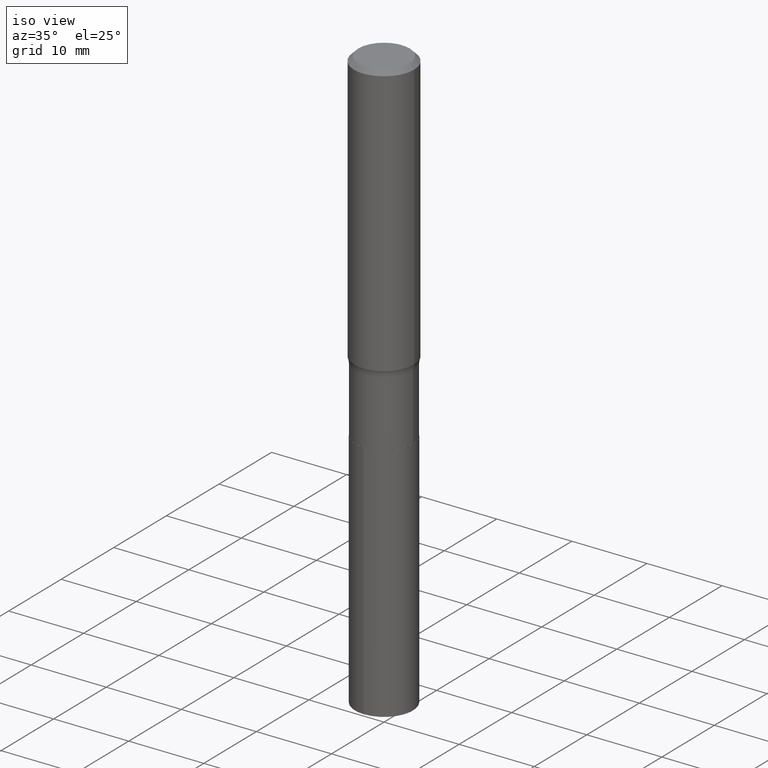
[diagram: clean part render]
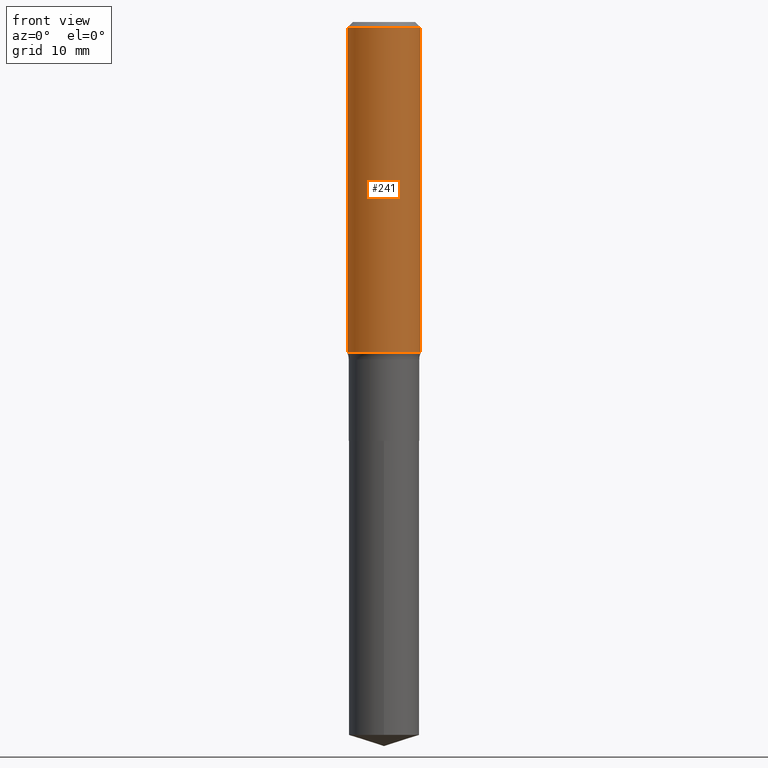
[diagram: tour spotlight — one face highlighted and labeled with its STEP entity id]
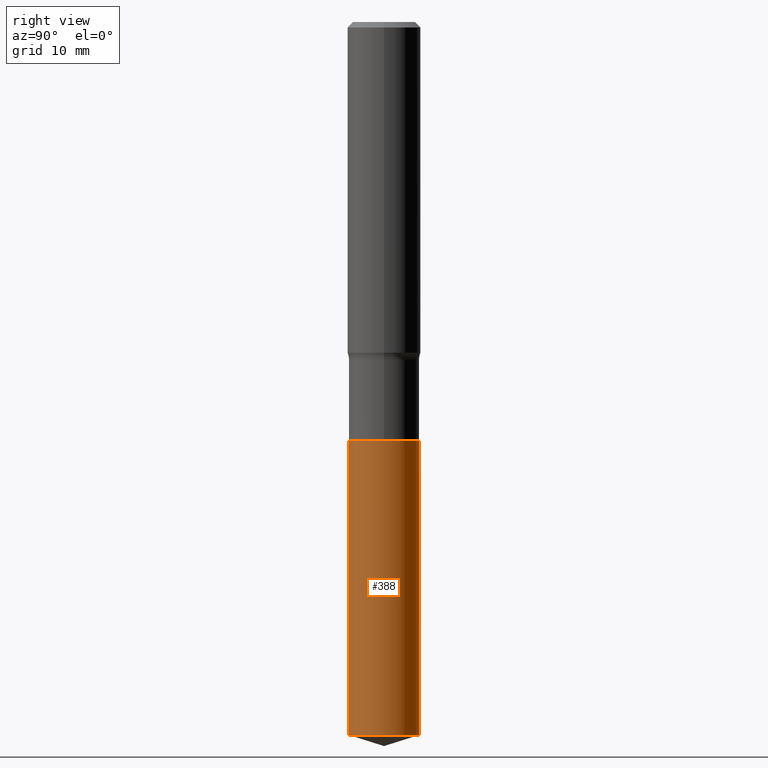
[diagram: tour spotlight — one face highlighted and labeled with its STEP entity id]
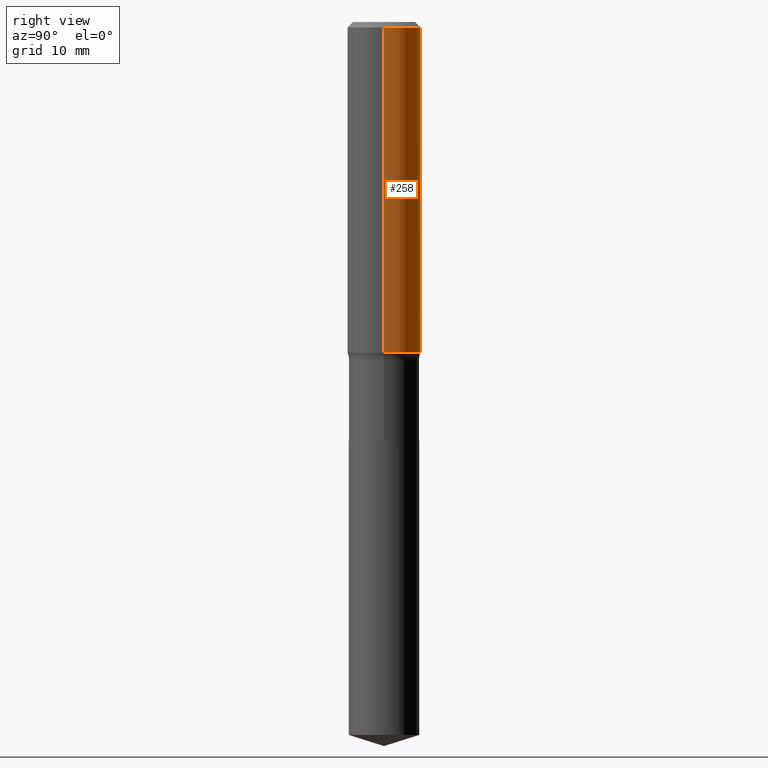
[diagram: tour spotlight — one face highlighted and labeled with its STEP entity id]
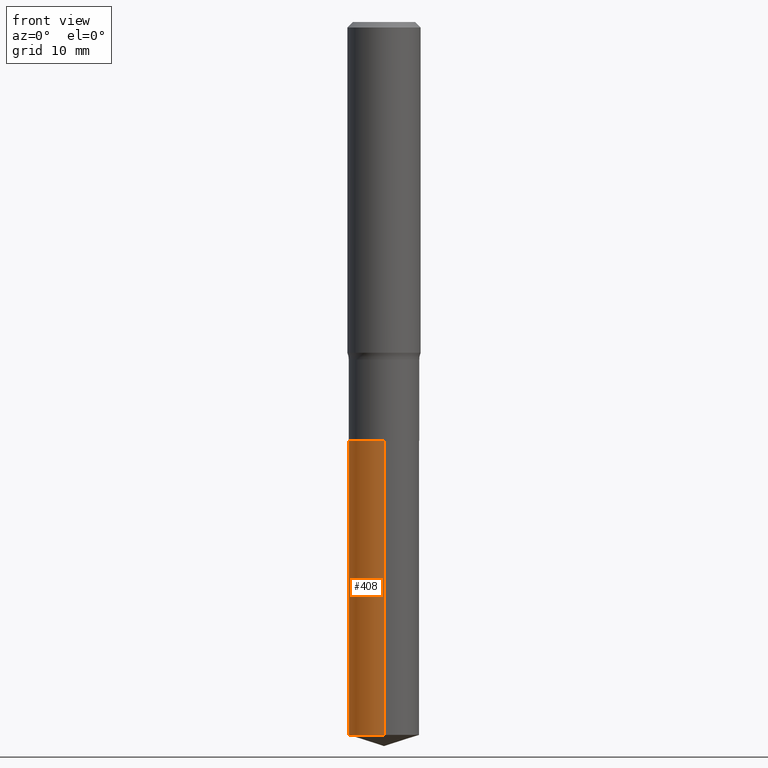
[diagram: tour spotlight — one face highlighted and labeled with its STEP entity id]
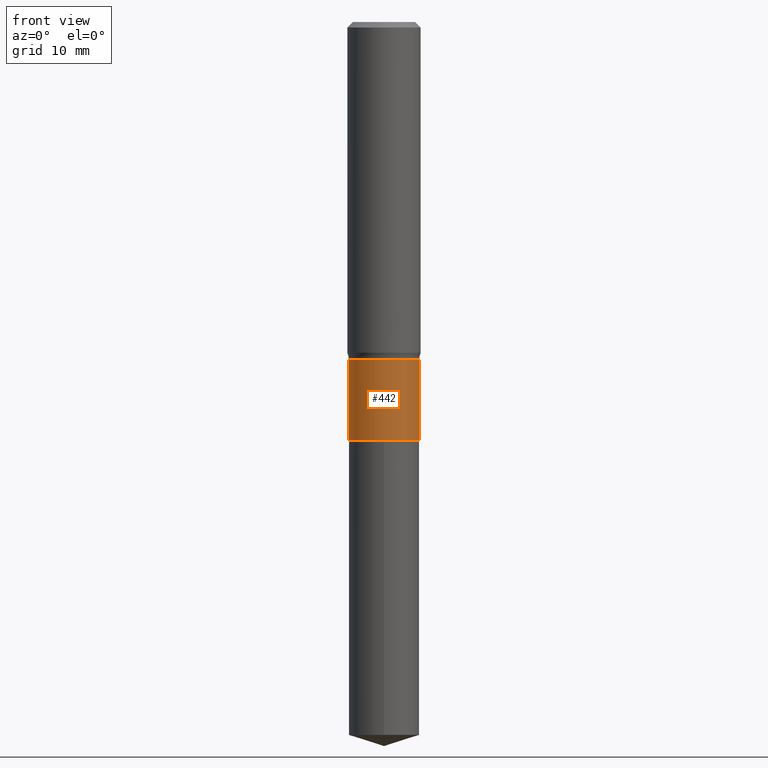
[diagram: tour spotlight — one face highlighted and labeled with its STEP entity id]
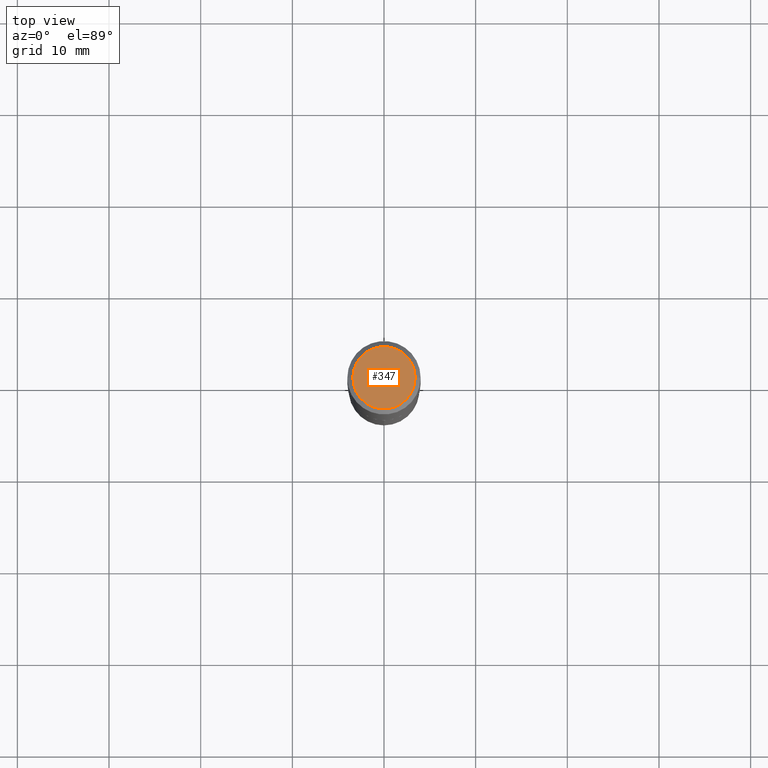
[diagram: tour spotlight — one face highlighted and labeled with its STEP entity id]
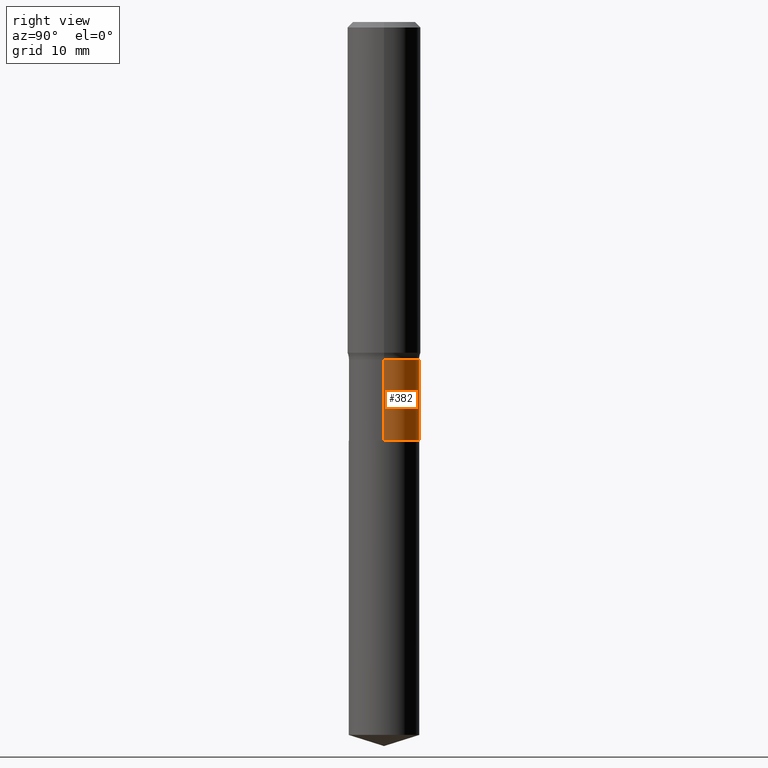
[diagram: tour spotlight — one face highlighted and labeled with its STEP entity id]
A machine part: a face-by-face anatomy tour. The part has 17 B-rep faces; the first image is the clean iso view, then the 7 largest visible faces are spotlighted one at a time (largest first), each with its STEP entity span.

Face 1 — front view, entity #241. In plain terms, the highlighted cylindrical surface (partial cylindrical patch) has radius 4.0005 mm, axis along (-0, 0, 1).
Definition (entity closure, byte-faithful):
#18 = FACE_OUTER_BOUND ( 'NONE', #135, .T. ) ;
#25 = DIRECTION ( 'NONE',  ( 1.000000000000000000, -6.982962677686265922E-15, 0.000000000000000000 ) ) ;
#43 = ORIENTED_EDGE ( 'NONE', *, *, #170, .F. ) ;
#50 = EDGE_CURVE ( 'NONE', #286, #58, #90, .T. ) ;
#53 = VECTOR ( 'NONE', #459, 39.37007874015748143 ) ;
#57 = CARTESIAN_POINT ( 'NONE',  ( 5.777420054612421104E-31, -8.248624663016984002E-17, -0.02362500000000014588 ) ) ;
#58 = VERTEX_POINT ( 'NONE', #232 ) ;
#60 = DIRECTION ( 'NONE',  ( -2.445468806185136597E-29, 3.491481338843145583E-15, 1.000000000000000000 ) ) ;
#62 = CARTESIAN_POINT ( 'NONE',  ( 3.474082587019340908E-29, -4.960069206975464196E-15, -1.420620282799195833 ) ) ;
#75 = EDGE_CURVE ( 'NONE', #386, #134, #198, .T. ) ;
#90 = LINE ( 'NONE', #236, #384 ) ;
#133 = CYLINDRICAL_SURFACE ( 'NONE', #460, 0.1575000000000000844 ) ;
#134 = VERTEX_POINT ( 'NONE', #390 ) ;
#135 = EDGE_LOOP ( 'NONE', ( #365, #334, #177, #43 ) ) ;
#165 = DIRECTION ( 'NONE',  ( -2.445468806185136597E-29, 3.491481338843145583E-15, 1.000000000000000000 ) ) ;
#170 = EDGE_CURVE ( 'NONE', #134, #58, #301, .T. ) ;
#171 = DIRECTION ( 'NONE',  ( 1.000000000000000000, -6.982962677686265922E-15, 0.000000000000000000 ) ) ;
#177 = ORIENTED_EDGE ( 'NONE', *, *, #50, .T. ) ;
#193 = CARTESIAN_POINT ( 'NONE',  ( -0.1575000000000000844, 1.119104808822158392E-15, -7.747322767151481189E-30 ) ) ;
#198 = LINE ( 'NONE', #193, #53 ) ;
#200 = AXIS2_PLACEMENT_3D ( 'NONE', #62, #60, #171 ) ;
#204 = DIRECTION ( 'NONE',  ( -2.445468806185136597E-29, 3.491481338843145583E-15, 1.000000000000000000 ) ) ;
#225 = EDGE_CURVE ( 'NONE', #386, #286, #443, .T. ) ;
#232 = CARTESIAN_POINT ( 'NONE',  ( 0.1575000000000000011, -1.182302868365756679E-15, -0.02362500000000014588 ) ) ;
#236 = CARTESIAN_POINT ( 'NONE',  ( 0.1575000000000000844, -1.099816621735587677E-15, 7.679978421878603638E-30 ) ) ;
#241 = ADVANCED_FACE ( 'NONE', ( #18 ), #133, .T. ) ;
#279 = DIRECTION ( 'NONE',  ( 1.000000000000000000, -6.982962677686267499E-15, 4.876176775795936353E-29 ) ) ;
#286 = VERTEX_POINT ( 'NONE', #401 ) ;
#301 = CIRCLE ( 'NONE', #479, 0.1575000000000000011 ) ;
#334 = ORIENTED_EDGE ( 'NONE', *, *, #225, .T. ) ;
#365 = ORIENTED_EDGE ( 'NONE', *, *, #75, .F. ) ;
#384 = VECTOR ( 'NONE', #421, 39.37007874015748143 ) ;
#386 = VERTEX_POINT ( 'NONE', #410 ) ;
#390 = CARTESIAN_POINT ( 'NONE',  ( -0.1575000000000000011, -1.402172917980658404E-15, -0.02362500000000014588 ) ) ;
#401 = CARTESIAN_POINT ( 'NONE',  ( 0.1575000000000001954, -6.059885828711052465E-15, -1.420620282799195833 ) ) ;
#410 = CARTESIAN_POINT ( 'NONE',  ( -0.1575000000000001954, -3.840964398153305804E-15, -1.420620282799195833 ) ) ;
#421 = DIRECTION ( 'NONE',  ( -2.445468806185136877E-29, 3.491481338843145188E-15, 1.000000000000000000 ) ) ;
#443 = CIRCLE ( 'NONE', #200, 0.1575000000000001954 ) ;
#459 = DIRECTION ( 'NONE',  ( -2.445468806185136877E-29, 3.491481338843145188E-15, 1.000000000000000000 ) ) ;
#460 = AXIS2_PLACEMENT_3D ( 'NONE', #465, #204, #279 ) ;
#465 = CARTESIAN_POINT ( 'NONE',  ( 0.000000000000000000, 0.000000000000000000, 0.000000000000000000 ) ) ;
#479 = AXIS2_PLACEMENT_3D ( 'NONE', #57, #165, #25 ) ;

Face 2 — right view, entity #388. In plain terms, the highlighted cylindrical surface (edge-blend (fillet) strip) has radius 3.8494 mm, axis along (-0, 0, 1).
Definition (entity closure, byte-faithful):
#8 = CARTESIAN_POINT ( 'NONE',  ( 1.076827516044506507E-15, 0.1515499999999936898, -1.799100000000000588 ) ) ;
#16 = EDGE_CURVE ( 'NONE', #251, #132, #208, .T. ) ;
#28 = ORIENTED_EDGE ( 'NONE', *, *, #16, .F. ) ;
#74 = LINE ( 'NONE', #404, #128 ) ;
#99 = VERTEX_POINT ( 'NONE', #462 ) ;
#107 = DIRECTION ( 'NONE',  ( -6.982962677686265922E-15, -1.000000000000000000, 3.605210153301568306E-15 ) ) ;
#110 = CARTESIAN_POINT ( 'NONE',  ( -1.058267993803309547E-15, -0.1515500000000062630, -1.799099999999999477 ) ) ;
#128 = VECTOR ( 'NONE', #256, 39.37007874015748143 ) ;
#132 = VERTEX_POINT ( 'NONE', #8 ) ;
#141 = DIRECTION ( 'NONE',  ( -2.445422248956437479E-29, 3.491548011444515616E-15, 1.000000000000000000 ) ) ;
#142 = CARTESIAN_POINT ( 'NONE',  ( 7.488985128861653082E-29, -1.069245418028746689E-14, -3.062416468545390291 ) ) ;
#147 = VERTEX_POINT ( 'NONE', #288 ) ;
#155 = CARTESIAN_POINT ( 'NONE',  ( 4.399642929207679392E-29, -6.281524076712702632E-15, -1.799099999999999921 ) ) ;
#174 = CARTESIAN_POINT ( 'NONE',  ( -1.058267993803309547E-15, -0.1515500000000062630, -1.799099999999999477 ) ) ;
#181 = DIRECTION ( 'NONE',  ( -2.445422248956437479E-29, 3.491548011444515616E-15, 1.000000000000000000 ) ) ;
#183 = VECTOR ( 'NONE', #329, 39.37007874015748143 ) ;
#203 = ORIENTED_EDGE ( 'NONE', *, *, #437, .T. ) ;
#208 = CIRCLE ( 'NONE', #375, 0.1515499999999999903 ) ;
#214 = EDGE_LOOP ( 'NONE', ( #361, #203, #28, #221 ) ) ;
#218 = FACE_OUTER_BOUND ( 'NONE', #214, .T. ) ;
#221 = ORIENTED_EDGE ( 'NONE', *, *, #416, .F. ) ;
#251 = VERTEX_POINT ( 'NONE', #174 ) ;
#253 = LINE ( 'NONE', #110, #183 ) ;
#256 = DIRECTION ( 'NONE',  ( -2.445422248956437198E-29, 3.491548011444515221E-15, 1.000000000000000000 ) ) ;
#261 = DIRECTION ( 'NONE',  ( -6.982962677686265922E-15, -1.000000000000000000, 3.605210153301569095E-15 ) ) ;
#275 = DIRECTION ( 'NONE',  ( -2.445422248956437479E-29, 3.491548011444515616E-15, 1.000000000000000000 ) ) ;
#288 = CARTESIAN_POINT ( 'NONE',  ( -1.058267993803278387E-15, -0.1515500000000106484, -3.062416468545389403 ) ) ;
#296 = CIRCLE ( 'NONE', #454, 0.1515499999999999625 ) ;
#329 = DIRECTION ( 'NONE',  ( -2.445422248956437198E-29, 3.491548011444515221E-15, 1.000000000000000000 ) ) ;
#331 = CYLINDRICAL_SURFACE ( 'NONE', #394, 0.1515499999999999903 ) ;
#354 = EDGE_CURVE ( 'NONE', #147, #99, #296, .T. ) ;
#361 = ORIENTED_EDGE ( 'NONE', *, *, #354, .T. ) ;
#370 = CARTESIAN_POINT ( 'NONE',  ( 4.399642929207679392E-29, -6.281524076712702632E-15, -1.799099999999999921 ) ) ;
#375 = AXIS2_PLACEMENT_3D ( 'NONE', #155, #275, #455 ) ;
#388 = ADVANCED_FACE ( 'NONE', ( #218 ), #331, .T. ) ;
#394 = AXIS2_PLACEMENT_3D ( 'NONE', #370, #141, #107 ) ;
#404 = CARTESIAN_POINT ( 'NONE',  ( 1.076827516044475742E-15, 0.1515499999999936898, -1.799100000000000588 ) ) ;
#416 = EDGE_CURVE ( 'NONE', #147, #251, #253, .T. ) ;
#437 = EDGE_CURVE ( 'NONE', #99, #132, #74, .T. ) ;
#454 = AXIS2_PLACEMENT_3D ( 'NONE', #142, #181, #261 ) ;
#455 = DIRECTION ( 'NONE',  ( -6.982962677686265922E-15, -1.000000000000000000, 3.605210153301568306E-15 ) ) ;
#462 = CARTESIAN_POINT ( 'NONE',  ( 1.076827516044506310E-15, 0.1515499999999892489, -3.062416468545390735 ) ) ;

Face 3 — right view, entity #258. In plain terms, the highlighted cylindrical surface (partial cylindrical patch) has radius 4.0005 mm, axis along (-0, 0, 1).
Definition (entity closure, byte-faithful):
#20 = EDGE_CURVE ( 'NONE', #58, #134, #199, .T. ) ;
#50 = EDGE_CURVE ( 'NONE', #286, #58, #90, .T. ) ;
#53 = VECTOR ( 'NONE', #459, 39.37007874015748143 ) ;
#58 = VERTEX_POINT ( 'NONE', #232 ) ;
#75 = EDGE_CURVE ( 'NONE', #386, #134, #198, .T. ) ;
#86 = DIRECTION ( 'NONE',  ( 1.000000000000000000, -6.982962677686265922E-15, 0.000000000000000000 ) ) ;
#89 = EDGE_CURVE ( 'NONE', #286, #386, #118, .T. ) ;
#90 = LINE ( 'NONE', #236, #384 ) ;
#115 = DIRECTION ( 'NONE',  ( -2.445468806185136597E-29, 3.491481338843145583E-15, 1.000000000000000000 ) ) ;
#118 = CIRCLE ( 'NONE', #368, 0.1575000000000001954 ) ;
#121 = CARTESIAN_POINT ( 'NONE',  ( 5.777420054612421104E-31, -8.248624663016984002E-17, -0.02362500000000014588 ) ) ;
#125 = CYLINDRICAL_SURFACE ( 'NONE', #308, 0.1575000000000000844 ) ;
#126 = EDGE_LOOP ( 'NONE', ( #473, #414, #129, #320 ) ) ;
#129 = ORIENTED_EDGE ( 'NONE', *, *, #20, .F. ) ;
#134 = VERTEX_POINT ( 'NONE', #390 ) ;
#182 = AXIS2_PLACEMENT_3D ( 'NONE', #121, #115, #381 ) ;
#193 = CARTESIAN_POINT ( 'NONE',  ( -0.1575000000000000844, 1.119104808822158392E-15, -7.747322767151481189E-30 ) ) ;
#198 = LINE ( 'NONE', #193, #53 ) ;
#199 = CIRCLE ( 'NONE', #182, 0.1575000000000000011 ) ;
#202 = CARTESIAN_POINT ( 'NONE',  ( 3.474082587019340908E-29, -4.960069206975464196E-15, -1.420620282799195833 ) ) ;
#209 = FACE_OUTER_BOUND ( 'NONE', #126, .T. ) ;
#232 = CARTESIAN_POINT ( 'NONE',  ( 0.1575000000000000011, -1.182302868365756679E-15, -0.02362500000000014588 ) ) ;
#236 = CARTESIAN_POINT ( 'NONE',  ( 0.1575000000000000844, -1.099816621735587677E-15, 7.679978421878603638E-30 ) ) ;
#245 = DIRECTION ( 'NONE',  ( -2.445468806185136597E-29, 3.491481338843145583E-15, 1.000000000000000000 ) ) ;
#258 = ADVANCED_FACE ( 'NONE', ( #209 ), #125, .T. ) ;
#282 = CARTESIAN_POINT ( 'NONE',  ( 0.000000000000000000, 0.000000000000000000, 0.000000000000000000 ) ) ;
#286 = VERTEX_POINT ( 'NONE', #401 ) ;
#308 = AXIS2_PLACEMENT_3D ( 'NONE', #282, #245, #360 ) ;
#310 = DIRECTION ( 'NONE',  ( -2.445468806185136597E-29, 3.491481338843145583E-15, 1.000000000000000000 ) ) ;
#320 = ORIENTED_EDGE ( 'NONE', *, *, #50, .F. ) ;
#360 = DIRECTION ( 'NONE',  ( 1.000000000000000000, -6.982962677686267499E-15, 4.876176775795936353E-29 ) ) ;
#368 = AXIS2_PLACEMENT_3D ( 'NONE', #202, #310, #86 ) ;
#381 = DIRECTION ( 'NONE',  ( 1.000000000000000000, -6.982962677686265922E-15, 0.000000000000000000 ) ) ;
#384 = VECTOR ( 'NONE', #421, 39.37007874015748143 ) ;
#386 = VERTEX_POINT ( 'NONE', #410 ) ;
#390 = CARTESIAN_POINT ( 'NONE',  ( -0.1575000000000000011, -1.402172917980658404E-15, -0.02362500000000014588 ) ) ;
#401 = CARTESIAN_POINT ( 'NONE',  ( 0.1575000000000001954, -6.059885828711052465E-15, -1.420620282799195833 ) ) ;
#410 = CARTESIAN_POINT ( 'NONE',  ( -0.1575000000000001954, -3.840964398153305804E-15, -1.420620282799195833 ) ) ;
#414 = ORIENTED_EDGE ( 'NONE', *, *, #75, .T. ) ;
#421 = DIRECTION ( 'NONE',  ( -2.445468806185136877E-29, 3.491481338843145188E-15, 1.000000000000000000 ) ) ;
#459 = DIRECTION ( 'NONE',  ( -2.445468806185136877E-29, 3.491481338843145188E-15, 1.000000000000000000 ) ) ;
#473 = ORIENTED_EDGE ( 'NONE', *, *, #89, .T. ) ;

Face 4 — front view, entity #408. In plain terms, the highlighted cylindrical surface (edge-blend (fillet) strip) has radius 3.8494 mm, axis along (-0, 0, 1).
Definition (entity closure, byte-faithful):
#8 = CARTESIAN_POINT ( 'NONE',  ( 1.076827516044506507E-15, 0.1515499999999936898, -1.799100000000000588 ) ) ;
#74 = LINE ( 'NONE', #404, #128 ) ;
#95 = ORIENTED_EDGE ( 'NONE', *, *, #416, .T. ) ;
#98 = EDGE_LOOP ( 'NONE', ( #477, #167, #95, #185 ) ) ;
#99 = VERTEX_POINT ( 'NONE', #462 ) ;
#100 = AXIS2_PLACEMENT_3D ( 'NONE', #445, #379, #184 ) ;
#110 = CARTESIAN_POINT ( 'NONE',  ( -1.058267993803309547E-15, -0.1515500000000062630, -1.799099999999999477 ) ) ;
#128 = VECTOR ( 'NONE', #256, 39.37007874015748143 ) ;
#132 = VERTEX_POINT ( 'NONE', #8 ) ;
#137 = CIRCLE ( 'NONE', #100, 0.1515499999999999903 ) ;
#147 = VERTEX_POINT ( 'NONE', #288 ) ;
#148 = CYLINDRICAL_SURFACE ( 'NONE', #152, 0.1515499999999999903 ) ;
#152 = AXIS2_PLACEMENT_3D ( 'NONE', #412, #254, #293 ) ;
#167 = ORIENTED_EDGE ( 'NONE', *, *, #259, .T. ) ;
#174 = CARTESIAN_POINT ( 'NONE',  ( -1.058267993803309547E-15, -0.1515500000000062630, -1.799099999999999477 ) ) ;
#183 = VECTOR ( 'NONE', #329, 39.37007874015748143 ) ;
#184 = DIRECTION ( 'NONE',  ( -6.982962677686265922E-15, -1.000000000000000000, 3.605210153301568306E-15 ) ) ;
#185 = ORIENTED_EDGE ( 'NONE', *, *, #342, .F. ) ;
#251 = VERTEX_POINT ( 'NONE', #174 ) ;
#253 = LINE ( 'NONE', #110, #183 ) ;
#254 = DIRECTION ( 'NONE',  ( -2.445422248956437479E-29, 3.491548011444515616E-15, 1.000000000000000000 ) ) ;
#256 = DIRECTION ( 'NONE',  ( -2.445422248956437198E-29, 3.491548011444515221E-15, 1.000000000000000000 ) ) ;
#259 = EDGE_CURVE ( 'NONE', #99, #147, #324, .T. ) ;
#288 = CARTESIAN_POINT ( 'NONE',  ( -1.058267993803278387E-15, -0.1515500000000106484, -3.062416468545389403 ) ) ;
#293 = DIRECTION ( 'NONE',  ( -6.982962677686265922E-15, -1.000000000000000000, 3.605210153301568306E-15 ) ) ;
#319 = DIRECTION ( 'NONE',  ( -6.982962677686265922E-15, -1.000000000000000000, 3.605210153301569095E-15 ) ) ;
#324 = CIRCLE ( 'NONE', #413, 0.1515499999999999625 ) ;
#329 = DIRECTION ( 'NONE',  ( -2.445422248956437198E-29, 3.491548011444515221E-15, 1.000000000000000000 ) ) ;
#342 = EDGE_CURVE ( 'NONE', #132, #251, #137, .T. ) ;
#379 = DIRECTION ( 'NONE',  ( -2.445422248956437479E-29, 3.491548011444515616E-15, 1.000000000000000000 ) ) ;
#402 = DIRECTION ( 'NONE',  ( -2.445422248956437479E-29, 3.491548011444515616E-15, 1.000000000000000000 ) ) ;
#404 = CARTESIAN_POINT ( 'NONE',  ( 1.076827516044475742E-15, 0.1515499999999936898, -1.799100000000000588 ) ) ;
#408 = ADVANCED_FACE ( 'NONE', ( #446 ), #148, .T. ) ;
#412 = CARTESIAN_POINT ( 'NONE',  ( 4.399642929207679392E-29, -6.281524076712702632E-15, -1.799099999999999921 ) ) ;
#413 = AXIS2_PLACEMENT_3D ( 'NONE', #438, #402, #319 ) ;
#416 = EDGE_CURVE ( 'NONE', #147, #251, #253, .T. ) ;
#437 = EDGE_CURVE ( 'NONE', #99, #132, #74, .T. ) ;
#438 = CARTESIAN_POINT ( 'NONE',  ( 7.488985128861653082E-29, -1.069245418028746689E-14, -3.062416468545390291 ) ) ;
#445 = CARTESIAN_POINT ( 'NONE',  ( 4.399642929207679392E-29, -6.281524076712702632E-15, -1.799099999999999921 ) ) ;
#446 = FACE_OUTER_BOUND ( 'NONE', #98, .T. ) ;
#462 = CARTESIAN_POINT ( 'NONE',  ( 1.076827516044506310E-15, 0.1515499999999892489, -3.062416468545390735 ) ) ;
#477 = ORIENTED_EDGE ( 'NONE', *, *, #437, .F. ) ;

Face 5 — front view, entity #442. In plain terms, the highlighted cylindrical surface (edge-blend (fillet) strip) has radius 3.8494 mm, axis along (-0, 0, 1).
Definition (entity closure, byte-faithful):
#3 = AXIS2_PLACEMENT_3D ( 'NONE', #71, #371, #33 ) ;
#14 = VERTEX_POINT ( 'NONE', #303 ) ;
#22 = AXIS2_PLACEMENT_3D ( 'NONE', #220, #488, #327 ) ;
#27 = VERTEX_POINT ( 'NONE', #392 ) ;
#29 = ORIENTED_EDGE ( 'NONE', *, *, #314, .F. ) ;
#33 = DIRECTION ( 'NONE',  ( 1.000000000000000000, -6.982962677686267499E-15, 4.876176775795936353E-29 ) ) ;
#64 = ORIENTED_EDGE ( 'NONE', *, *, #255, .T. ) ;
#67 = LINE ( 'NONE', #448, #406 ) ;
#69 = AXIS2_PLACEMENT_3D ( 'NONE', #145, #295, #298 ) ;
#71 = CARTESIAN_POINT ( 'NONE',  ( 0.000000000000000000, 0.000000000000000000, 0.000000000000000000 ) ) ;
#77 = CIRCLE ( 'NONE', #22, 0.1515499999999999903 ) ;
#80 = VERTEX_POINT ( 'NONE', #113 ) ;
#108 = EDGE_LOOP ( 'NONE', ( #29, #440, #64, #212 ) ) ;
#113 = CARTESIAN_POINT ( 'NONE',  ( 0.1515499999999999625, -6.122661675795335552E-15, -1.450499999999999901 ) ) ;
#131 = CARTESIAN_POINT ( 'NONE',  ( 0.1515499999999999625, -1.058267993803353526E-15, 7.389845903718739567E-30 ) ) ;
#145 = CARTESIAN_POINT ( 'NONE',  ( 3.547152503371540530E-29, -5.064393681991982224E-15, -1.450499999999999901 ) ) ;
#146 = CYLINDRICAL_SURFACE ( 'NONE', #3, 0.1515499999999999625 ) ;
#166 = LINE ( 'NONE', #131, #400 ) ;
#180 = CARTESIAN_POINT ( 'NONE',  ( 0.1515499999999999903, -7.338046329846634457E-15, -1.798599999999999977 ) ) ;
#212 = ORIENTED_EDGE ( 'NONE', *, *, #466, .F. ) ;
#217 = CIRCLE ( 'NONE', #69, 0.1515499999999999625 ) ;
#220 = CARTESIAN_POINT ( 'NONE',  ( 4.398420194804586591E-29, -6.279778336043281129E-15, -1.798599999999999977 ) ) ;
#227 = DIRECTION ( 'NONE',  ( -2.445468806185136877E-29, 3.491481338843145188E-15, 1.000000000000000000 ) ) ;
#255 = EDGE_CURVE ( 'NONE', #328, #80, #166, .T. ) ;
#295 = DIRECTION ( 'NONE',  ( -2.445468806185136597E-29, 3.491481338843145583E-15, 1.000000000000000000 ) ) ;
#298 = DIRECTION ( 'NONE',  ( 1.000000000000000000, -6.982962677686263555E-15, 0.000000000000000000 ) ) ;
#303 = CARTESIAN_POINT ( 'NONE',  ( -0.1515499999999999903, -4.595258492973200111E-15, -1.798599999999999977 ) ) ;
#314 = EDGE_CURVE ( 'NONE', #14, #27, #67, .T. ) ;
#327 = DIRECTION ( 'NONE',  ( 1.000000000000000000, -6.982962677686268288E-15, 0.000000000000000000 ) ) ;
#328 = VERTEX_POINT ( 'NONE', #180 ) ;
#348 = EDGE_CURVE ( 'NONE', #14, #328, #77, .T. ) ;
#371 = DIRECTION ( 'NONE',  ( -2.445468806185136597E-29, 3.491481338843145583E-15, 1.000000000000000000 ) ) ;
#392 = CARTESIAN_POINT ( 'NONE',  ( -0.1515499999999999625, -4.595258492973200111E-15, -1.450499999999999901 ) ) ;
#398 = DIRECTION ( 'NONE',  ( -2.445468806185136877E-29, 3.491481338843145188E-15, 1.000000000000000000 ) ) ;
#400 = VECTOR ( 'NONE', #398, 39.37007874015748143 ) ;
#406 = VECTOR ( 'NONE', #227, 39.37007874015748143 ) ;
#440 = ORIENTED_EDGE ( 'NONE', *, *, #348, .T. ) ;
#442 = ADVANCED_FACE ( 'NONE', ( #449 ), #146, .T. ) ;
#448 = CARTESIAN_POINT ( 'NONE',  ( -0.1515499999999999625, 1.076827516044431565E-15, -7.454646129281308311E-30 ) ) ;
#449 = FACE_OUTER_BOUND ( 'NONE', #108, .T. ) ;
#466 = EDGE_CURVE ( 'NONE', #27, #80, #217, .T. ) ;
#488 = DIRECTION ( 'NONE',  ( -2.445468806185136597E-29, 3.491481338843145583E-15, 1.000000000000000000 ) ) ;

Face 6 — top view, entity #347. In plain terms, the highlighted planar face has unit normal (0, -0, -1).
Definition (entity closure, byte-faithful):
#11 = AXIS2_PLACEMENT_3D ( 'NONE', #79, #376, #325 ) ;
#26 = DIRECTION ( 'NONE',  ( -2.445468806185136597E-29, 3.491481338843145583E-15, 1.000000000000000000 ) ) ;
#56 = VERTEX_POINT ( 'NONE', #117 ) ;
#79 = CARTESIAN_POINT ( 'NONE',  ( -5.014852121625167883E-47, 7.159879756154482429E-33, 2.050671065172242981E-18 ) ) ;
#91 = CARTESIAN_POINT ( 'NONE',  ( 0.1338749999999999940, -1.040731925365424925E-15, 4.101342130351393887E-18 ) ) ;
#104 = FACE_OUTER_BOUND ( 'NONE', #363, .T. ) ;
#117 = CARTESIAN_POINT ( 'NONE',  ( -0.1338749999999999940, 9.760872517903331886E-16, 4.101342130337804525E-18 ) ) ;
#122 = EDGE_CURVE ( 'NONE', #56, #153, #452, .T. ) ;
#127 = DIRECTION ( 'NONE',  ( 1.000000000000000000, -6.982962677686266711E-15, 4.876170806578254279E-29 ) ) ;
#143 = EDGE_CURVE ( 'NONE', #153, #56, #431, .T. ) ;
#150 = ORIENTED_EDGE ( 'NONE', *, *, #143, .T. ) ;
#153 = VERTEX_POINT ( 'NONE', #91 ) ;
#190 = AXIS2_PLACEMENT_3D ( 'NONE', #418, #196, #346 ) ;
#196 = DIRECTION ( 'NONE',  ( -2.445468806185136597E-29, 3.491481338843145583E-15, 1.000000000000000000 ) ) ;
#215 = PLANE ( 'NONE',  #11 ) ;
#325 = DIRECTION ( 'NONE',  ( -1.000000000000000000, 6.982962677686265922E-15, -4.876176775795935793E-29 ) ) ;
#346 = DIRECTION ( 'NONE',  ( 1.000000000000000000, -6.982962677686266711E-15, 4.876170806578254279E-29 ) ) ;
#347 = ADVANCED_FACE ( 'NONE', ( #104 ), #215, .F. ) ;
#353 = ORIENTED_EDGE ( 'NONE', *, *, #122, .T. ) ;
#363 = EDGE_LOOP ( 'NONE', ( #353, #150 ) ) ;
#376 = DIRECTION ( 'NONE',  ( 2.438088387897960049E-29, -3.491481338843145188E-15, -1.000000000000000000 ) ) ;
#418 = CARTESIAN_POINT ( 'NONE',  ( -1.002970424325033577E-46, 1.431975951230896486E-32, 4.101342130344485961E-18 ) ) ;
#431 = CIRCLE ( 'NONE', #469, 0.1338749999999999940 ) ;
#434 = CARTESIAN_POINT ( 'NONE',  ( -1.002970424325033577E-46, 1.431975951230896486E-32, 4.101342130344485961E-18 ) ) ;
#452 = CIRCLE ( 'NONE', #190, 0.1338749999999999940 ) ;
#469 = AXIS2_PLACEMENT_3D ( 'NONE', #434, #26, #127 ) ;

Face 7 — right view, entity #382. In plain terms, the highlighted cylindrical surface (edge-blend (fillet) strip) has radius 3.8494 mm, axis along (-0, 0, 1).
Definition (entity closure, byte-faithful):
#4 = ORIENTED_EDGE ( 'NONE', *, *, #314, .T. ) ;
#14 = VERTEX_POINT ( 'NONE', #303 ) ;
#27 = VERTEX_POINT ( 'NONE', #392 ) ;
#31 = CARTESIAN_POINT ( 'NONE',  ( 4.398420194804586591E-29, -6.279778336043281129E-15, -1.798599999999999977 ) ) ;
#41 = ORIENTED_EDGE ( 'NONE', *, *, #255, .F. ) ;
#46 = EDGE_LOOP ( 'NONE', ( #489, #4, #290, #41 ) ) ;
#67 = LINE ( 'NONE', #448, #406 ) ;
#80 = VERTEX_POINT ( 'NONE', #113 ) ;
#84 = EDGE_CURVE ( 'NONE', #80, #27, #393, .T. ) ;
#111 = AXIS2_PLACEMENT_3D ( 'NONE', #450, #491, #483 ) ;
#113 = CARTESIAN_POINT ( 'NONE',  ( 0.1515499999999999625, -6.122661675795335552E-15, -1.450499999999999901 ) ) ;
#131 = CARTESIAN_POINT ( 'NONE',  ( 0.1515499999999999625, -1.058267993803353526E-15, 7.389845903718739567E-30 ) ) ;
#166 = LINE ( 'NONE', #131, #400 ) ;
#176 = AXIS2_PLACEMENT_3D ( 'NONE', #31, #407, #485 ) ;
#180 = CARTESIAN_POINT ( 'NONE',  ( 0.1515499999999999903, -7.338046329846634457E-15, -1.798599999999999977 ) ) ;
#227 = DIRECTION ( 'NONE',  ( -2.445468806185136877E-29, 3.491481338843145188E-15, 1.000000000000000000 ) ) ;
#237 = CARTESIAN_POINT ( 'NONE',  ( 3.547152503371540530E-29, -5.064393681991982224E-15, -1.450499999999999901 ) ) ;
#255 = EDGE_CURVE ( 'NONE', #328, #80, #166, .T. ) ;
#272 = DIRECTION ( 'NONE',  ( -2.445468806185136597E-29, 3.491481338843145583E-15, 1.000000000000000000 ) ) ;
#290 = ORIENTED_EDGE ( 'NONE', *, *, #84, .F. ) ;
#299 = FACE_OUTER_BOUND ( 'NONE', #46, .T. ) ;
#303 = CARTESIAN_POINT ( 'NONE',  ( -0.1515499999999999903, -4.595258492973200111E-15, -1.798599999999999977 ) ) ;
#314 = EDGE_CURVE ( 'NONE', #14, #27, #67, .T. ) ;
#328 = VERTEX_POINT ( 'NONE', #180 ) ;
#382 = ADVANCED_FACE ( 'NONE', ( #299 ), #409, .T. ) ;
#392 = CARTESIAN_POINT ( 'NONE',  ( -0.1515499999999999625, -4.595258492973200111E-15, -1.450499999999999901 ) ) ;
#393 = CIRCLE ( 'NONE', #441, 0.1515499999999999625 ) ;
#398 = DIRECTION ( 'NONE',  ( -2.445468806185136877E-29, 3.491481338843145188E-15, 1.000000000000000000 ) ) ;
#400 = VECTOR ( 'NONE', #398, 39.37007874015748143 ) ;
#406 = VECTOR ( 'NONE', #227, 39.37007874015748143 ) ;
#407 = DIRECTION ( 'NONE',  ( -2.445468806185136597E-29, 3.491481338843145583E-15, 1.000000000000000000 ) ) ;
#409 = CYLINDRICAL_SURFACE ( 'NONE', #111, 0.1515499999999999625 ) ;
#424 = DIRECTION ( 'NONE',  ( 1.000000000000000000, -6.982962677686263555E-15, 0.000000000000000000 ) ) ;
#432 = CIRCLE ( 'NONE', #176, 0.1515499999999999903 ) ;
#439 = EDGE_CURVE ( 'NONE', #328, #14, #432, .T. ) ;
#441 = AXIS2_PLACEMENT_3D ( 'NONE', #237, #272, #424 ) ;
#448 = CARTESIAN_POINT ( 'NONE',  ( -0.1515499999999999625, 1.076827516044431565E-15, -7.454646129281308311E-30 ) ) ;
#450 = CARTESIAN_POINT ( 'NONE',  ( 0.000000000000000000, 0.000000000000000000, 0.000000000000000000 ) ) ;
#483 = DIRECTION ( 'NONE',  ( 1.000000000000000000, -6.982962677686267499E-15, 4.876176775795936353E-29 ) ) ;
#485 = DIRECTION ( 'NONE',  ( 1.000000000000000000, -6.982962677686268288E-15, 0.000000000000000000 ) ) ;
#489 = ORIENTED_EDGE ( 'NONE', *, *, #439, .T. ) ;
#491 = DIRECTION ( 'NONE',  ( -2.445468806185136597E-29, 3.491481338843145583E-15, 1.000000000000000000 ) ) ;